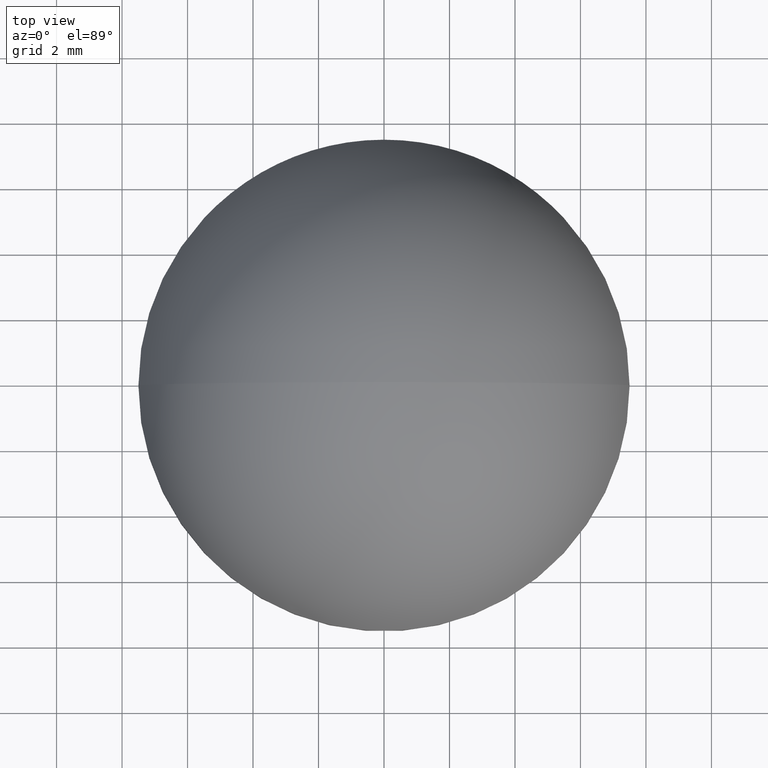
[diagram: clean part render]
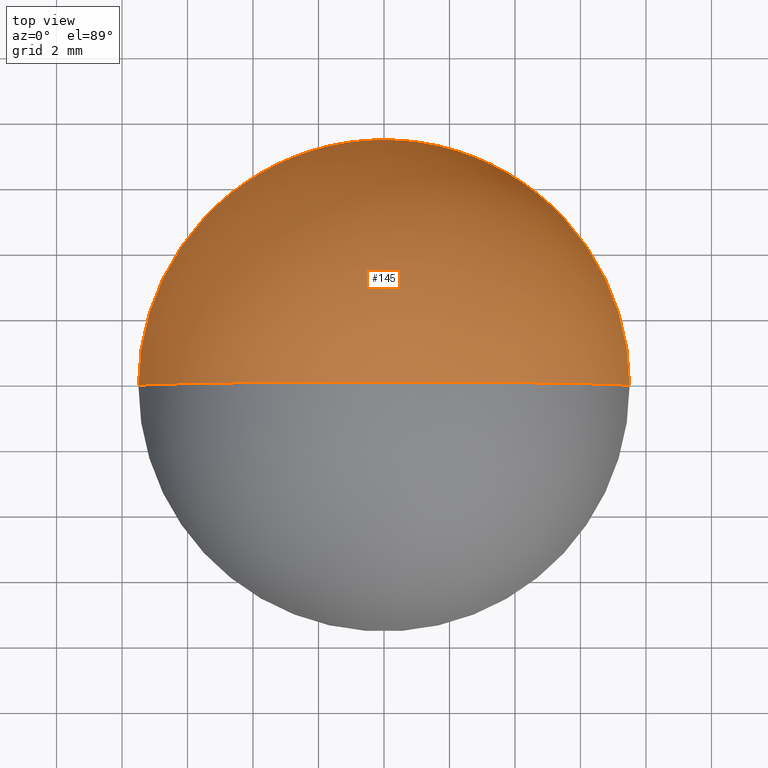
[diagram: same view with one face highlighted and labeled with its STEP entity id]
A machine part, top view. The second image highlights one B-rep face of the part: STEP entity #145.
In plain terms, the highlighted spherical surface has radius 7.8029 mm.
Its self-contained STEP definition (entity closure, byte-faithful):
#2 = AXIS2_PLACEMENT_3D ( 'NONE', #146, #11, #200 ) ;
#5 = VERTEX_POINT ( 'NONE', #76 ) ;
#11 = DIRECTION ( 'NONE',  ( -0.000000000000000000, -1.000000000000000000, 0.000000000000000000 ) ) ;
#12 = DIRECTION ( 'NONE',  ( 0.000000000000000000, 0.000000000000000000, 1.000000000000000000 ) ) ;
#18 = CIRCLE ( 'NONE', #57, 7.802876106194690742 ) ;
#20 = EDGE_LOOP ( 'NONE', ( #114, #167, #201 ) ) ;
#49 = CARTESIAN_POINT ( 'NONE',  ( -9.114692313739364955E-16, 0.000000000000000000, 7.000000000000000000 ) ) ;
#50 = CARTESIAN_POINT ( 'NONE',  ( 0.000000000000000000, 0.000000000000000000, 1.350000000000000089 ) ) ;
#51 = SPHERICAL_SURFACE ( 'NONE', #2, 7.802876106194690742 ) ;
#57 = AXIS2_PLACEMENT_3D ( 'NONE', #61, #128, #85 ) ;
#61 = CARTESIAN_POINT ( 'NONE',  ( -4.336808689942017736E-16, 0.000000000000000000, -0.8028761061946902977 ) ) ;
#63 = CARTESIAN_POINT ( 'NONE',  ( -4.336808689942017736E-16, 0.000000000000000000, -0.8028761061946902977 ) ) ;
#67 = DIRECTION ( 'NONE',  ( 1.000000000000000000, 0.000000000000000000, 0.000000000000000000 ) ) ;
#76 = CARTESIAN_POINT ( 'NONE',  ( -7.500000000000000888, 0.000000000000000000, 1.350000000000000089 ) ) ;
#85 = DIRECTION ( 'NONE',  ( 0.000000000000000000, 0.000000000000000000, 1.000000000000000000 ) ) ;
#101 = AXIS2_PLACEMENT_3D ( 'NONE', #63, #115, #186 ) ;
#104 = EDGE_CURVE ( 'NONE', #188, #5, #118, .T. ) ;
#106 = AXIS2_PLACEMENT_3D ( 'NONE', #50, #12, #67 ) ;
#114 = ORIENTED_EDGE ( 'NONE', *, *, #140, .F. ) ;
#115 = DIRECTION ( 'NONE',  ( -1.224646799147353207E-16, -1.000000000000000000, -0.000000000000000000 ) ) ;
#118 = CIRCLE ( 'NONE', #106, 7.500000000000000888 ) ;
#128 = DIRECTION ( 'NONE',  ( 0.000000000000000000, 1.000000000000000000, 0.000000000000000000 ) ) ;
#140 = EDGE_CURVE ( 'NONE', #188, #208, #180, .T. ) ;
#145 = ADVANCED_FACE ( 'NONE', ( #211 ), #51, .T. ) ;
#146 = CARTESIAN_POINT ( 'NONE',  ( -4.336808689942017736E-16, 0.000000000000000000, -0.8028761061946902977 ) ) ;
#167 = ORIENTED_EDGE ( 'NONE', *, *, #104, .T. ) ;
#180 = CIRCLE ( 'NONE', #101, 7.802876106194690742 ) ;
#185 = EDGE_CURVE ( 'NONE', #5, #208, #18, .T. ) ;
#186 = DIRECTION ( 'NONE',  ( 1.000000000000000000, -1.224646799147353207E-16, 0.000000000000000000 ) ) ;
#188 = VERTEX_POINT ( 'NONE', #198 ) ;
#198 = CARTESIAN_POINT ( 'NONE',  ( 7.500000000000000888, 9.184850993605147944E-16, 1.350000000000000089 ) ) ;
#200 = DIRECTION ( 'NONE',  ( -1.000000000000000000, 0.000000000000000000, 0.000000000000000000 ) ) ;
#201 = ORIENTED_EDGE ( 'NONE', *, *, #185, .T. ) ;
#208 = VERTEX_POINT ( 'NONE', #49 ) ;
#211 = FACE_OUTER_BOUND ( 'NONE', #20, .T. ) ;